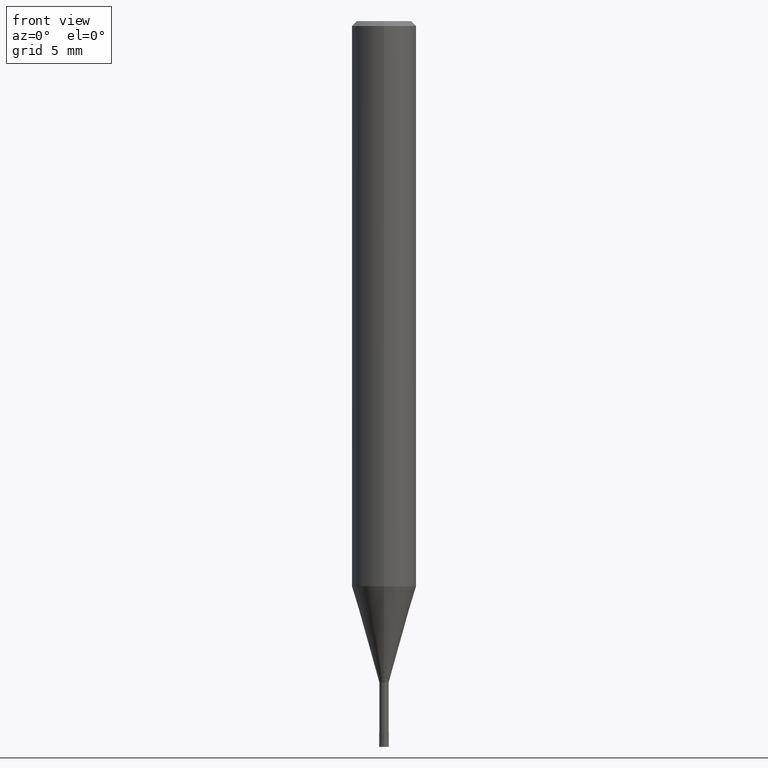
[diagram: clean part render]
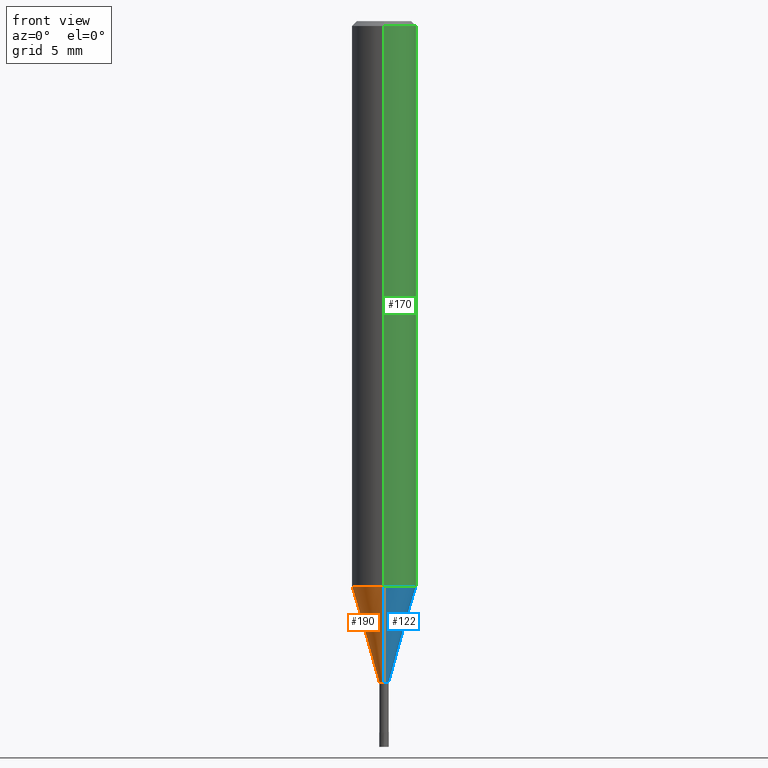
[diagram: same view with three faces highlighted in distinct colors, each labeled with its STEP entity id]
A machine part, front view with three faces highlighted in distinct colors.
Their STEP definitions:

[orange] entity #190 — the highlighted conical surface has half-angle 16.001 deg.
#140=VERTEX_POINT('',#281);
#164=EDGE_CURVE('',#208,#194,#311,.T.);
#182=VERTEX_POINT('',#331);
#188=EDGE_CURVE('',#182,#194,#338,.T.);
#190=ADVANCED_FACE('',(#340),#341,.T.);
#192=EDGE_CURVE('',#140,#182,#343,.T.);
#194=VERTEX_POINT('',#345);
#200=EDGE_CURVE('',#208,#140,#352,.T.);
#208=VERTEX_POINT('',#361);
#281=CARTESIAN_POINT('',(2.44915147732706E-016,-1.99995,-35.037));
#311=CIRCLE('',#478,0.28995);
#331=CARTESIAN_POINT('',(0.0,1.99995,-35.037));
#338=LINE('',#507,#508);
#340=FACE_OUTER_BOUND('',#510,.T.);
#341=CONICAL_SURFACE('',#511,1.14495,0.279273950674422);
#343=CIRCLE('',#514,1.99995);
#345=CARTESIAN_POINT('',(0.0,0.28995,-41.0));
#352=LINE('',#526,#527);
#361=CARTESIAN_POINT('',(3.55074612290798E-017,-0.28995,-41.0));
#478=AXIS2_PLACEMENT_3D('',#650,#651,#652);
#507=CARTESIAN_POINT('',(-1.40211304480893E-016,1.14495,-38.0185));
#508=VECTOR('',#682,1.0);
#510=EDGE_LOOP('',(#684,#685,#686,#687));
#511=AXIS2_PLACEMENT_3D('',#688,#689,#690);
#514=AXIS2_PLACEMENT_3D('',#691,#692,#693);
#526=CARTESIAN_POINT('',(1.40211304480893E-016,-1.14495,-38.0185));
#527=VECTOR('',#703,1.0);
#650=CARTESIAN_POINT('',(0.0,0.0,-41.0));
#651=DIRECTION('',(0.0,0.0,-1.0));
#652=DIRECTION('',(0.0,1.0,0.0));
#682=DIRECTION('',(3.37572295972149E-017,-0.275657802132482,-0.961255832816368));
#684=ORIENTED_EDGE('',*,*,#188,.T.);
#685=ORIENTED_EDGE('',*,*,#164,.F.);
#686=ORIENTED_EDGE('',*,*,#200,.T.);
#687=ORIENTED_EDGE('',*,*,#192,.T.);
#688=CARTESIAN_POINT('',(0.0,0.0,-38.0185));
#689=DIRECTION('',(-0.0,-0.0,1.0));
#690=DIRECTION('',(0.0,1.0,0.0));
#691=CARTESIAN_POINT('',(0.0,0.0,-35.037));
#692=DIRECTION('',(0.0,0.0,-1.0));
#693=DIRECTION('',(0.0,1.0,0.0));
#703=DIRECTION('',(3.37572295972149E-017,-0.275657802132482,0.961255832816368));

[blue] entity #122 — the highlighted conical surface has half-angle 16.001 deg.
#94=EDGE_CURVE('',#194,#208,#231,.T.);
#122=ADVANCED_FACE('',(#262),#263,.T.);
#140=VERTEX_POINT('',#281);
#154=EDGE_CURVE('',#182,#140,#299,.T.);
#182=VERTEX_POINT('',#331);
#188=EDGE_CURVE('',#182,#194,#338,.T.);
#194=VERTEX_POINT('',#345);
#200=EDGE_CURVE('',#208,#140,#352,.T.);
#208=VERTEX_POINT('',#361);
#231=CIRCLE('',#379,0.28995);
#262=FACE_OUTER_BOUND('',#417,.T.);
#263=CONICAL_SURFACE('',#418,1.14495,0.279273950674422);
#281=CARTESIAN_POINT('',(2.44915147732706E-016,-1.99995,-35.037));
#299=CIRCLE('',#464,1.99995);
#331=CARTESIAN_POINT('',(0.0,1.99995,-35.037));
#338=LINE('',#507,#508);
#345=CARTESIAN_POINT('',(0.0,0.28995,-41.0));
#352=LINE('',#526,#527);
#361=CARTESIAN_POINT('',(3.55074612290798E-017,-0.28995,-41.0));
#379=AXIS2_PLACEMENT_3D('',#543,#544,#545);
#417=EDGE_LOOP('',(#584,#585,#586,#587));
#418=AXIS2_PLACEMENT_3D('',#588,#589,#590);
#464=AXIS2_PLACEMENT_3D('',#630,#631,#632);
#507=CARTESIAN_POINT('',(-1.40211304480893E-016,1.14495,-38.0185));
#508=VECTOR('',#682,1.0);
#526=CARTESIAN_POINT('',(1.40211304480893E-016,-1.14495,-38.0185));
#527=VECTOR('',#703,1.0);
#543=CARTESIAN_POINT('',(0.0,0.0,-41.0));
#544=DIRECTION('',(0.0,0.0,-1.0));
#545=DIRECTION('',(0.0,1.0,0.0));
#584=ORIENTED_EDGE('',*,*,#188,.F.);
#585=ORIENTED_EDGE('',*,*,#154,.T.);
#586=ORIENTED_EDGE('',*,*,#200,.F.);
#587=ORIENTED_EDGE('',*,*,#94,.F.);
#588=CARTESIAN_POINT('',(0.0,0.0,-38.0185));
#589=DIRECTION('',(-0.0,-0.0,1.0));
#590=DIRECTION('',(0.0,1.0,0.0));
#630=CARTESIAN_POINT('',(0.0,0.0,-35.037));
#631=DIRECTION('',(0.0,0.0,-1.0));
#632=DIRECTION('',(0.0,1.0,0.0));
#682=DIRECTION('',(3.37572295972149E-017,-0.275657802132482,-0.961255832816368));
#703=DIRECTION('',(3.37572295972149E-017,-0.275657802132482,0.961255832816368));

[green] entity #170 — the highlighted cylindrical surface (edge-blend (fillet) strip) has radius 2 mm, axis along (-0, -0, 1).
#112=EDGE_CURVE('',#172,#118,#251,.T.);
#116=EDGE_CURVE('',#160,#180,#256,.T.);
#118=VERTEX_POINT('',#258);
#136=EDGE_CURVE('',#160,#118,#277,.T.);
#160=VERTEX_POINT('',#307);
#170=ADVANCED_FACE('',(#317),#318,.T.);
#172=VERTEX_POINT('',#320);
#180=VERTEX_POINT('',#329);
#186=EDGE_CURVE('',#180,#172,#336,.T.);
#251=LINE('',#402,#403);
#256=LINE('',#409,#410);
#258=CARTESIAN_POINT('',(2.44921270764475E-016,-2.0,-0.299999999999997));
#277=CIRCLE('',#438,2.0);
#307=CARTESIAN_POINT('',(0.0,2.0,-0.299999999999997));
#317=FACE_OUTER_BOUND('',#485,.T.);
#318=CYLINDRICAL_SURFACE('',#486,2.0);
#320=CARTESIAN_POINT('',(2.44921270764475E-016,-2.0,-35.037));
#329=CARTESIAN_POINT('',(0.0,2.0,-35.037));
#336=CIRCLE('',#504,2.0);
#402=CARTESIAN_POINT('',(2.44921270764475E-016,-2.0,-17.6685));
#403=VECTOR('',#572,1.0);
#409=CARTESIAN_POINT('',(-2.44921270764475E-016,2.0,-17.6685));
#410=VECTOR('',#579,1.0);
#438=AXIS2_PLACEMENT_3D('',#601,#602,#603);
#485=EDGE_LOOP('',(#657,#658,#659,#660));
#486=AXIS2_PLACEMENT_3D('',#661,#662,#663);
#504=AXIS2_PLACEMENT_3D('',#679,#680,#681);
#572=DIRECTION('',(-0.0,-0.0,1.0));
#579=DIRECTION('',(0.0,0.0,-1.0));
#601=CARTESIAN_POINT('',(0.0,0.0,-0.299999999999997));
#602=DIRECTION('',(0.0,0.0,-1.0));
#603=DIRECTION('',(0.0,1.0,0.0));
#657=ORIENTED_EDGE('',*,*,#116,.F.);
#658=ORIENTED_EDGE('',*,*,#136,.T.);
#659=ORIENTED_EDGE('',*,*,#112,.F.);
#660=ORIENTED_EDGE('',*,*,#186,.F.);
#661=CARTESIAN_POINT('',(0.0,0.0,-17.6685));
#662=DIRECTION('',(-0.0,-0.0,1.0));
#663=DIRECTION('',(0.0,1.0,0.0));
#679=CARTESIAN_POINT('',(0.0,0.0,-35.037));
#680=DIRECTION('',(0.0,0.0,-1.0));
#681=DIRECTION('',(0.0,1.0,0.0));